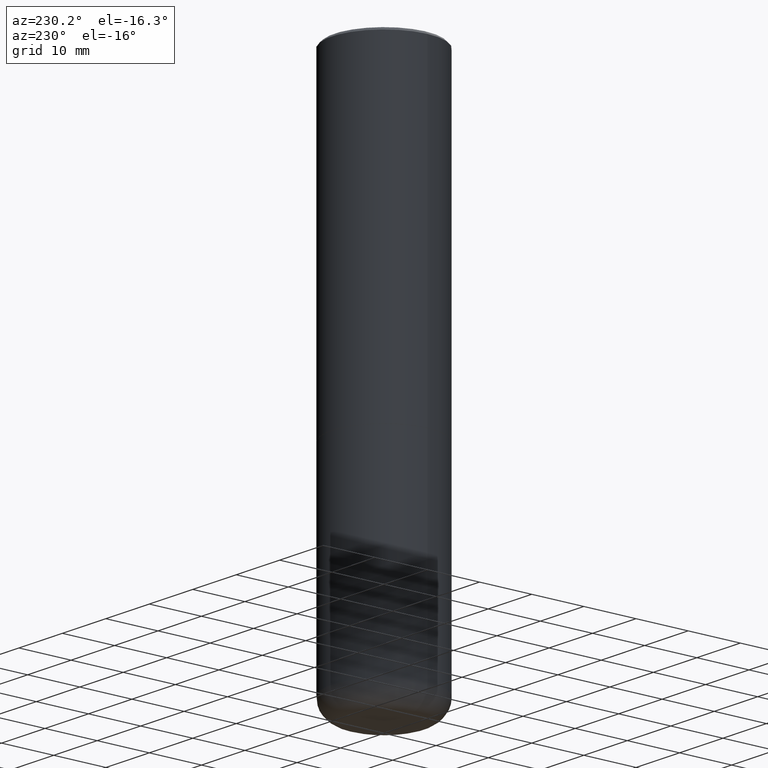
[diagram: clean part render]
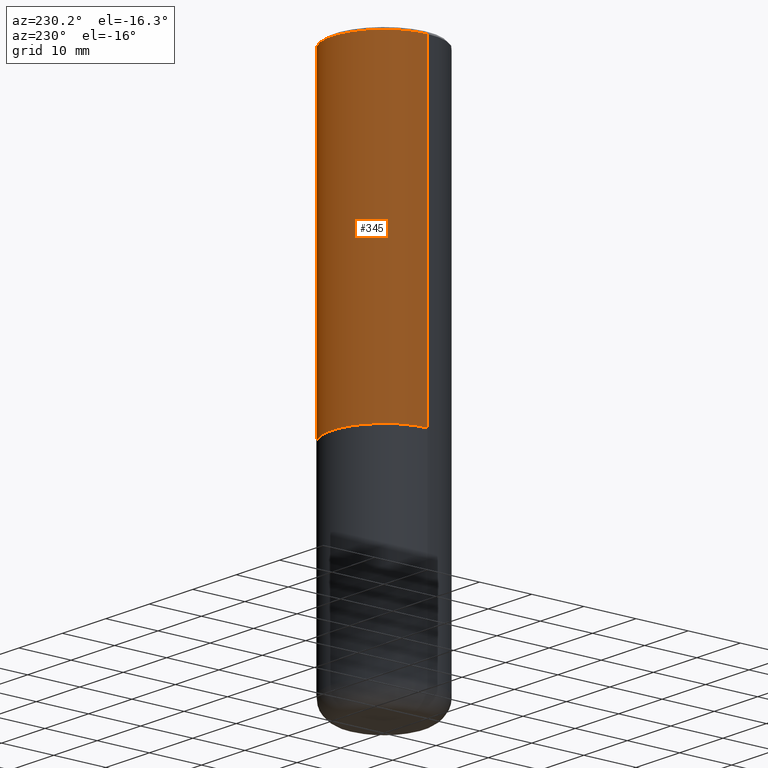
[diagram: same view with one face highlighted and labeled with its STEP entity id]
A machine part, auxiliary view. The second image highlights one B-rep face of the part: STEP entity #345.
In plain terms, the highlighted cylindrical surface (partial cylindrical patch) has radius 10 mm, axis along (-0, 0, 1).
Its self-contained STEP definition (entity closure, byte-faithful):
#3 = CARTESIAN_POINT ( 'NONE',  ( 0.3937000000000000499, -2.770807688499515734E-15, -0.02000000000000008715 ) ) ;
#8 = LINE ( 'NONE', #10, #402 ) ;
#10 = CARTESIAN_POINT ( 'NONE',  ( 0.3937000000000001609, -2.749192406205084400E-15, 1.919750796630860732E-29 ) ) ;
#18 = DIRECTION ( 'NONE',  ( 1.000000000000000000, -6.982962677686265922E-15, 0.000000000000000000 ) ) ;
#56 = EDGE_CURVE ( 'NONE', #416, #162, #324, .T. ) ;
#80 = EDGE_LOOP ( 'NONE', ( #407, #232, #112, #110 ) ) ;
#92 = LINE ( 'NONE', #272, #157 ) ;
#93 = VERTEX_POINT ( 'NONE', #295 ) ;
#101 = EDGE_CURVE ( 'NONE', #287, #93, #350, .T. ) ;
#110 = ORIENTED_EDGE ( 'NONE', *, *, #274, .F. ) ;
#112 = ORIENTED_EDGE ( 'NONE', *, *, #101, .F. ) ;
#114 = CARTESIAN_POINT ( 'NONE',  ( 0.000000000000000000, 0.000000000000000000, 0.000000000000000000 ) ) ;
#116 = CARTESIAN_POINT ( 'NONE',  ( 4.890937612370294178E-31, -6.982962677686321191E-17, -0.02000000000000008715 ) ) ;
#141 = EDGE_CURVE ( 'NONE', #162, #93, #92, .T. ) ;
#146 = AXIS2_PLACEMENT_3D ( 'NONE', #207, #206, #18 ) ;
#157 = VECTOR ( 'NONE', #340, 39.37007874015748143 ) ;
#162 = VERTEX_POINT ( 'NONE', #164 ) ;
#164 = CARTESIAN_POINT ( 'NONE',  ( -0.3937000000000003830, -1.428333113714341032E-15, -2.400600000000000289 ) ) ;
#183 = CYLINDRICAL_SURFACE ( 'NONE', #384, 0.3937000000000001609 ) ;
#204 = AXIS2_PLACEMENT_3D ( 'NONE', #116, #238, #363 ) ;
#206 = DIRECTION ( 'NONE',  ( -2.445468806185136597E-29, 3.491481338843145583E-15, 1.000000000000000000 ) ) ;
#207 = CARTESIAN_POINT ( 'NONE',  ( 5.870592416128038746E-29, -8.381650102026855834E-15, -2.400600000000000289 ) ) ;
#232 = ORIENTED_EDGE ( 'NONE', *, *, #141, .T. ) ;
#236 = DIRECTION ( 'NONE',  ( 1.000000000000000000, -6.982962677686266711E-15, 4.876176775795935793E-29 ) ) ;
#238 = DIRECTION ( 'NONE',  ( -2.445468806185136597E-29, 3.491481338843145583E-15, 1.000000000000000000 ) ) ;
#272 = CARTESIAN_POINT ( 'NONE',  ( -0.3937000000000001609, 2.797406750687515575E-15, -1.936584745033357296E-29 ) ) ;
#274 = EDGE_CURVE ( 'NONE', #416, #287, #8, .T. ) ;
#287 = VERTEX_POINT ( 'NONE', #3 ) ;
#294 = DIRECTION ( 'NONE',  ( -2.445468806185136597E-29, 3.491481338843145583E-15, 1.000000000000000000 ) ) ;
#295 = CARTESIAN_POINT ( 'NONE',  ( -0.3937000000000000499, 2.679362779428219918E-15, -0.02000000000000008715 ) ) ;
#324 = CIRCLE ( 'NONE', #146, 0.3937000000000002720 ) ;
#340 = DIRECTION ( 'NONE',  ( -2.445468806185136877E-29, 3.491481338843145188E-15, 1.000000000000000000 ) ) ;
#345 = ADVANCED_FACE ( 'NONE', ( #357 ), #183, .T. ) ;
#350 = CIRCLE ( 'NONE', #204, 0.3937000000000000499 ) ;
#357 = FACE_OUTER_BOUND ( 'NONE', #80, .T. ) ;
#363 = DIRECTION ( 'NONE',  ( 1.000000000000000000, -6.982962677686265922E-15, 0.000000000000000000 ) ) ;
#384 = AXIS2_PLACEMENT_3D ( 'NONE', #114, #294, #236 ) ;
#394 = DIRECTION ( 'NONE',  ( -2.445468806185136877E-29, 3.491481338843145188E-15, 1.000000000000000000 ) ) ;
#402 = VECTOR ( 'NONE', #394, 39.37007874015748143 ) ;
#406 = CARTESIAN_POINT ( 'NONE',  ( 0.3937000000000002720, -1.113084250823194063E-14, -2.400600000000000289 ) ) ;
#407 = ORIENTED_EDGE ( 'NONE', *, *, #56, .T. ) ;
#416 = VERTEX_POINT ( 'NONE', #406 ) ;